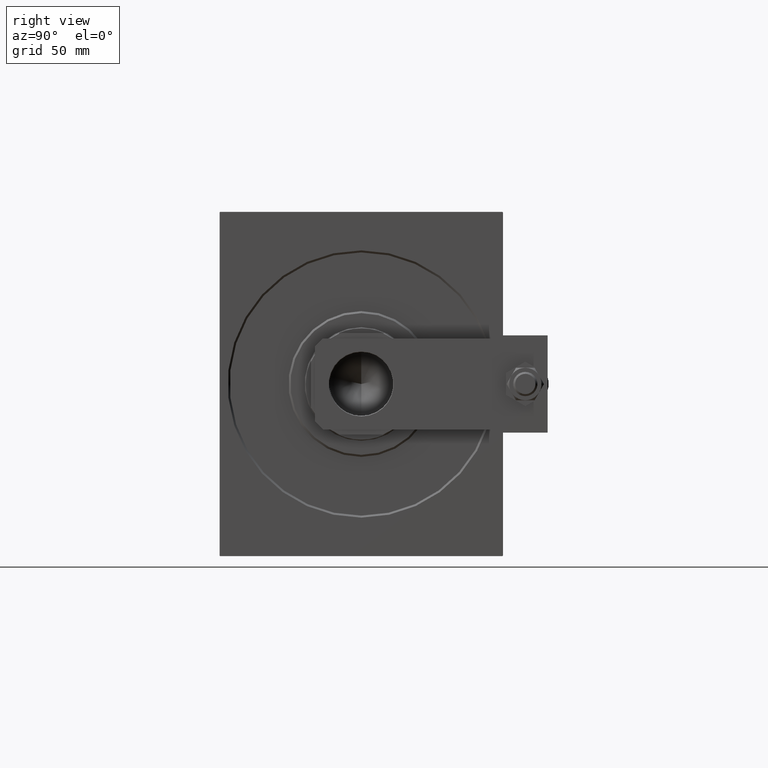
[diagram: clean part render]
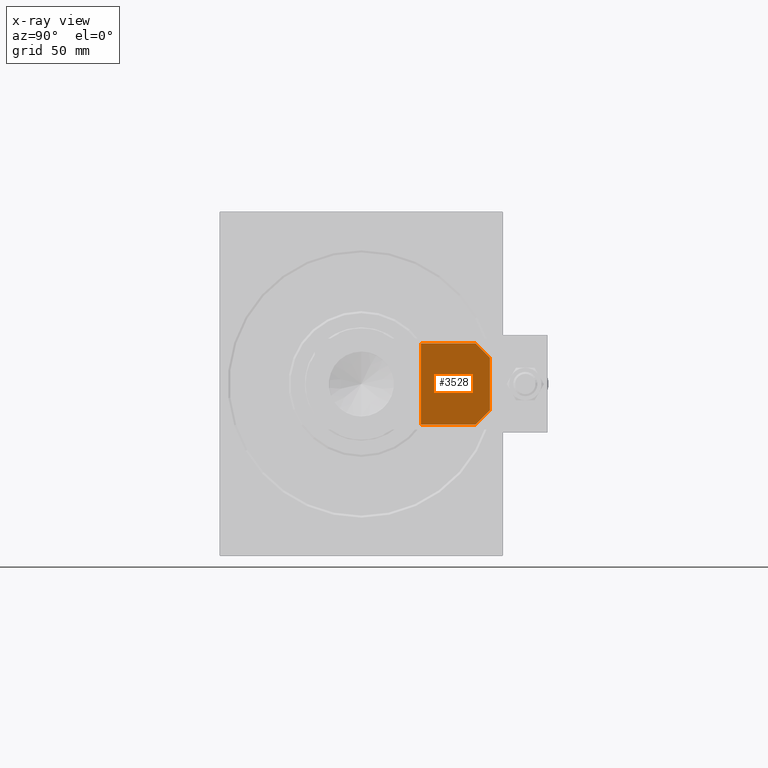
[diagram: x-ray — body ghosted, one internal face saturated and labeled with its STEP entity id]
A machine part, right view, then the same camera in x-ray: the body is ghosted and one INTERNAL B-rep face — a face not visible from any outside direction — is saturated and labeled: STEP entity #3528.
In plain terms, the highlighted planar face has unit normal (1, 0, -0).
Its self-contained STEP definition (entity closure, byte-faithful):
#621 = EDGE_CURVE ( 'NONE', #42466, #19275, #13081, .T. ) ;
#1952 = CARTESIAN_POINT ( 'NONE',  ( -19.99999999999993960, 2.569960705150834076E-15, 10.00000000000000000 ) ) ;
#2290 = FACE_OUTER_BOUND ( 'NONE', #8290, .T. ) ;
#2714 = EDGE_CURVE ( 'NONE', #43105, #32901, #19687, .T. ) ;
#3528 = ADVANCED_FACE ( 'NONE', ( #2290 ), #25033, .T. ) ;
#3613 = LINE ( 'NONE', #42027, #10185 ) ;
#5129 = CARTESIAN_POINT ( 'NONE',  ( 20.00000000000005684, 13.50000000000003730, 10.00000000000000000 ) ) ;
#5833 = DIRECTION ( 'NONE',  ( 1.000000000000000000, 0.000000000000000000, -0.000000000000000000 ) ) ;
#6574 = CARTESIAN_POINT ( 'NONE',  ( 0.000000000000000000, 0.000000000000000000, 10.00000000000000000 ) ) ;
#6991 = ORIENTED_EDGE ( 'NONE', *, *, #36403, .T. ) ;
#7152 = DIRECTION ( 'NONE',  ( -1.284980352575421081E-16, -1.000000000000000000, -0.000000000000000000 ) ) ;
#7818 = DIRECTION ( 'NONE',  ( -1.000000000000000000, 0.000000000000000000, 0.000000000000000000 ) ) ;
#8290 = EDGE_LOOP ( 'NONE', ( #35569, #28663, #6991, #15350, #37060, #31017, #43515 ) ) ;
#10185 = VECTOR ( 'NONE', #7152, 1000.000000000000000 ) ;
#11045 = VECTOR ( 'NONE', #36276, 1000.000000000000000 ) ;
#13081 = LINE ( 'NONE', #32793, #33844 ) ;
#14895 = LINE ( 'NONE', #15389, #42122 ) ;
#15350 = ORIENTED_EDGE ( 'NONE', *, *, #27501, .T. ) ;
#15389 = CARTESIAN_POINT ( 'NONE',  ( -10.00000000000004086, 20.50000000000009592, 10.00000000000000000 ) ) ;
#15787 = DIRECTION ( 'NONE',  ( -1.284980352575421081E-16, -1.000000000000000000, -0.000000000000000000 ) ) ;
#16788 = CARTESIAN_POINT ( 'NONE',  ( -19.99999999999994316, -13.49999999999996092, 10.00000000000000000 ) ) ;
#17049 = AXIS2_PLACEMENT_3D ( 'NONE', #6574, #40445, #5833 ) ;
#18961 = CARTESIAN_POINT ( 'NONE',  ( -19.99999999999994316, -13.49999999999996092, 10.00000000000000000 ) ) ;
#19275 = VERTEX_POINT ( 'NONE', #21516 ) ;
#19687 = LINE ( 'NONE', #31825, #21828 ) ;
#21005 = DIRECTION ( 'NONE',  ( 1.284980352575412699E-16, 1.000000000000000000, 0.000000000000000000 ) ) ;
#21516 = CARTESIAN_POINT ( 'NONE',  ( 20.00000000000005329, -13.49999999999996092, 10.00000000000000000 ) ) ;
#21593 = VERTEX_POINT ( 'NONE', #35642 ) ;
#21828 = VECTOR ( 'NONE', #35606, 1000.000000000000114 ) ;
#25033 = PLANE ( 'NONE',  #17049 ) ;
#26588 = EDGE_CURVE ( 'NONE', #19275, #43105, #39453, .T. ) ;
#27003 = VECTOR ( 'NONE', #21005, 1000.000000000000000 ) ;
#27501 = EDGE_CURVE ( 'NONE', #21593, #49448, #47371, .T. ) ;
#28663 = ORIENTED_EDGE ( 'NONE', *, *, #46201, .T. ) ;
#31017 = ORIENTED_EDGE ( 'NONE', *, *, #621, .T. ) ;
#31825 = CARTESIAN_POINT ( 'NONE',  ( 9.999999999999984013, 23.50000000000009592, 10.00000000000000000 ) ) ;
#32497 = LINE ( 'NONE', #43879, #11045 ) ;
#32793 = CARTESIAN_POINT ( 'NONE',  ( -19.99999999999994316, -13.49999999999996092, 10.00000000000000000 ) ) ;
#32901 = VERTEX_POINT ( 'NONE', #45621 ) ;
#33844 = VECTOR ( 'NONE', #43671, 1000.000000000000000 ) ;
#34116 = EDGE_CURVE ( 'NONE', #49448, #42466, #3613, .T. ) ;
#35431 = CARTESIAN_POINT ( 'NONE',  ( -12.99999999999994138, 20.50000000000009592, 10.00000000000000000 ) ) ;
#35569 = ORIENTED_EDGE ( 'NONE', *, *, #2714, .T. ) ;
#35606 = DIRECTION ( 'NONE',  ( -0.7071067811865479058, 0.7071067811865470176, -0.000000000000000000 ) ) ;
#35642 = CARTESIAN_POINT ( 'NONE',  ( -19.99999999999993960, 13.49999999999986500, 10.00000000000000000 ) ) ;
#36276 = DIRECTION ( 'NONE',  ( -0.7071067811865356934, -0.7071067811865593411, -0.000000000000000000 ) ) ;
#36403 = EDGE_CURVE ( 'NONE', #40117, #21593, #32497, .T. ) ;
#37060 = ORIENTED_EDGE ( 'NONE', *, *, #34116, .T. ) ;
#38319 = VECTOR ( 'NONE', #15787, 1000.000000000000000 ) ;
#39453 = LINE ( 'NONE', #47313, #27003 ) ;
#40117 = VERTEX_POINT ( 'NONE', #35431 ) ;
#40445 = DIRECTION ( 'NONE',  ( 0.000000000000000000, 0.000000000000000000, 1.000000000000000000 ) ) ;
#42027 = CARTESIAN_POINT ( 'NONE',  ( -19.99999999999994316, -13.49999999999996092, 10.00000000000000000 ) ) ;
#42122 = VECTOR ( 'NONE', #7818, 1000.000000000000000 ) ;
#42466 = VERTEX_POINT ( 'NONE', #18961 ) ;
#43105 = VERTEX_POINT ( 'NONE', #5129 ) ;
#43515 = ORIENTED_EDGE ( 'NONE', *, *, #26588, .T. ) ;
#43671 = DIRECTION ( 'NONE',  ( 1.000000000000000000, 0.000000000000000000, 0.000000000000000000 ) ) ;
#43879 = CARTESIAN_POINT ( 'NONE',  ( -19.99999999999993960, 13.49999999999986500, 10.00000000000000000 ) ) ;
#45621 = CARTESIAN_POINT ( 'NONE',  ( 12.99999999999999112, 20.50000000000009592, 10.00000000000000000 ) ) ;
#46201 = EDGE_CURVE ( 'NONE', #32901, #40117, #14895, .T. ) ;
#47313 = CARTESIAN_POINT ( 'NONE',  ( 20.00000000000005329, -13.49999999999996092, 10.00000000000000000 ) ) ;
#47371 = LINE ( 'NONE', #16788, #38319 ) ;
#49448 = VERTEX_POINT ( 'NONE', #1952 ) ;